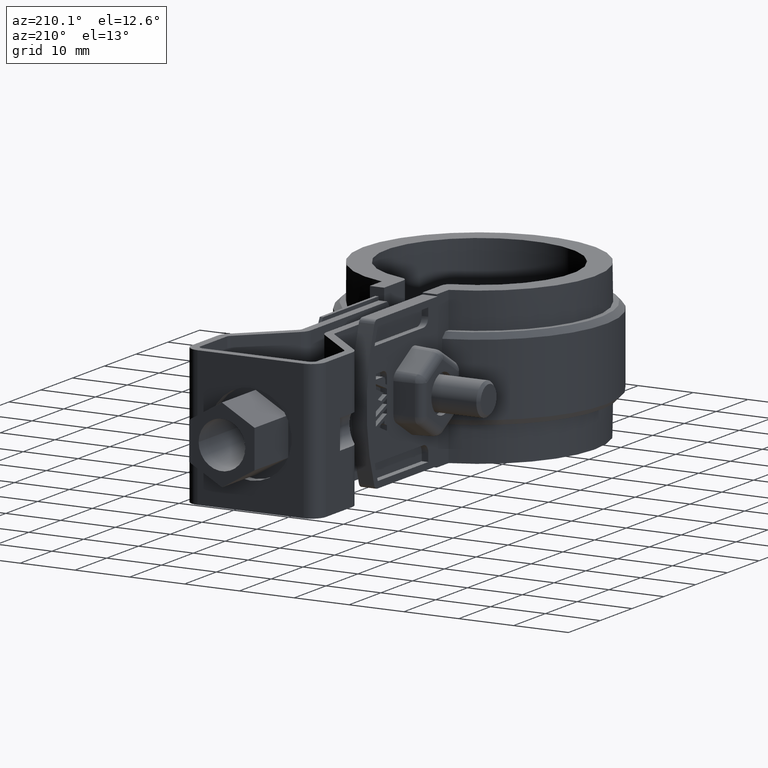
[diagram: clean part render]
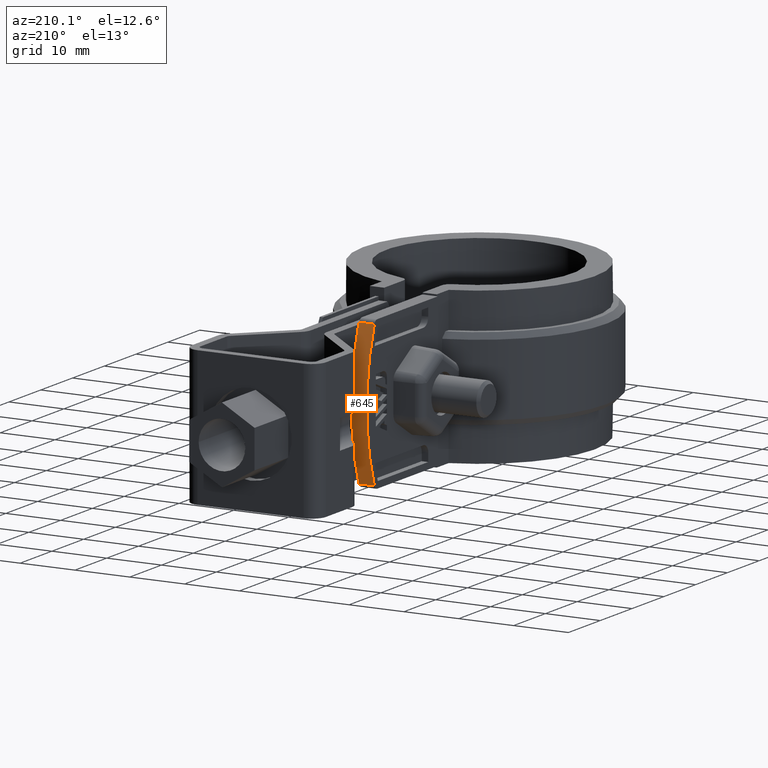
[diagram: same view with one face highlighted and labeled with its STEP entity id]
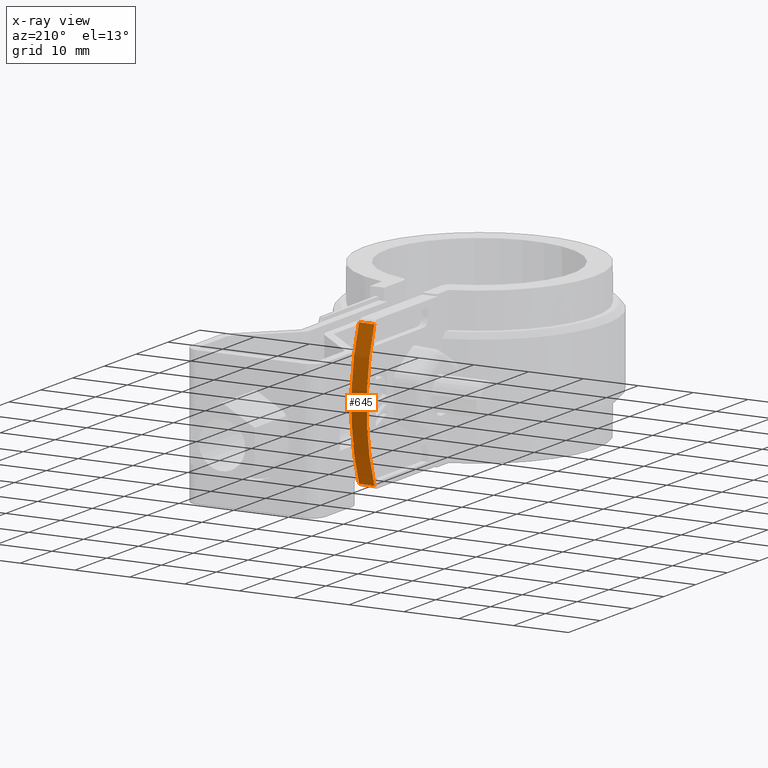
[diagram: x-ray of the same camera — body ghosted, the highlighted face saturated]
A machine part, auxiliary view. The second image highlights one B-rep face of the part: STEP entity #645.
The next image is the same camera in x-ray: the body ghosted, the highlighted face saturated — about 5% of this face is hidden behind the body in this view.
In plain terms, the highlighted cylindrical surface (partial cylindrical patch) has radius 36.4 mm, axis along (-1, -0, 0).
Its self-contained STEP definition (entity closure, byte-faithful):
#645 = ADVANCED_FACE( '', ( #1298 ), #1299, .T. );
#1298 = FACE_OUTER_BOUND( '', #2523, .T. );
#1299 = CYLINDRICAL_SURFACE( '', #2524, 36.4000000000000 );
#2523 = EDGE_LOOP( '', ( #5992, #5993, #5994, #5995 ) );
#2524 = AXIS2_PLACEMENT_3D( '', #5996, #5997, #5998 );
#5992 = ORIENTED_EDGE( '', *, *, #7186, .T. );
#5993 = ORIENTED_EDGE( '', *, *, #7127, .T. );
#5994 = ORIENTED_EDGE( '', *, *, #6958, .F. );
#5995 = ORIENTED_EDGE( '', *, *, #7121, .T. );
#5996 = CARTESIAN_POINT( '', ( -3.50000000000010, 9.94435844495534, -12.5000000000080 ) );
#5997 = DIRECTION( '', ( -1.00000000000000, -1.77553823037275E-016, 1.31611162141133E-020 ) );
#5998 = DIRECTION( '', ( -1.64492975916827E-016, 0.926467966726517, 0.376373626373626 ) );
#6958 = EDGE_CURVE( '', #8309, #8300, #8311, .T. );
#7121 = EDGE_CURVE( '', #8309, #8584, #8587, .T. );
#7127 = EDGE_CURVE( '', #8592, #8300, #8595, .T. );
#7186 = EDGE_CURVE( '', #8584, #8592, #8668, .T. );
#8300 = VERTEX_POINT( '', #11724 );
#8309 = VERTEX_POINT( '', #11736 );
#8311 = CIRCLE( '', #11738, 36.4000000000000 );
#8584 = VERTEX_POINT( '', #12140 );
#8587 = LINE( '', #12143, #12144 );
#8592 = VERTEX_POINT( '', #12152 );
#8595 = LINE( '', #12156, #12157 );
#8668 = CIRCLE( '', #12284, 36.4000000000000 );
#11724 = CARTESIAN_POINT( '', ( -6.30000000000010, 43.9212456477558, -25.5587570621549 ) );
#11736 = CARTESIAN_POINT( '', ( -6.30000000000010, 43.9212456477558, 0.558757062138912 ) );
#11738 = AXIS2_PLACEMENT_3D( '', #13297, #13298, #13299 );
#12140 = CARTESIAN_POINT( '', ( -3.50000000000010, 43.9212456477558, 0.558757062138912 ) );
#12143 = CARTESIAN_POINT( '', ( -3.50000000000011, 43.9212456477559, 0.558757062138915 ) );
#12144 = VECTOR( '', #13528, 1000.00000000000 );
#12152 = CARTESIAN_POINT( '', ( -3.50000000000010, 43.9212456477558, -25.5587570621549 ) );
#12156 = CARTESIAN_POINT( '', ( -3.50000000000011, 43.9212456477558, -25.5587570621549 ) );
#12157 = VECTOR( '', #13536, 1000.00000000000 );
#12284 = AXIS2_PLACEMENT_3D( '', #13603, #13604, #13605 );
#13297 = CARTESIAN_POINT( '', ( -6.30000000000010, 9.94435844495534, -12.5000000000080 ) );
#13298 = DIRECTION( '', ( -1.00000000000000, 6.07323687177816E-017, 1.31611162144384E-020 ) );
#13299 = DIRECTION( '', ( 1.31611162144249E-020, -2.22044604925031E-016, 1.00000000000000 ) );
#13528 = DIRECTION( '', ( 1.00000000000000, 1.77553823037274E-016, -1.31611162143767E-020 ) );
#13536 = DIRECTION( '', ( -1.00000000000000, -1.77553823037274E-016, 1.31611162143767E-020 ) );
#13603 = CARTESIAN_POINT( '', ( -3.50000000000010, 9.94435844495534, -12.5000000000080 ) );
#13604 = DIRECTION( '', ( -1.00000000000000, 6.07323687177816E-017, 1.31611162144384E-020 ) );
#13605 = DIRECTION( '', ( 1.31611162144249E-020, -2.22044604925031E-016, 1.00000000000000 ) );